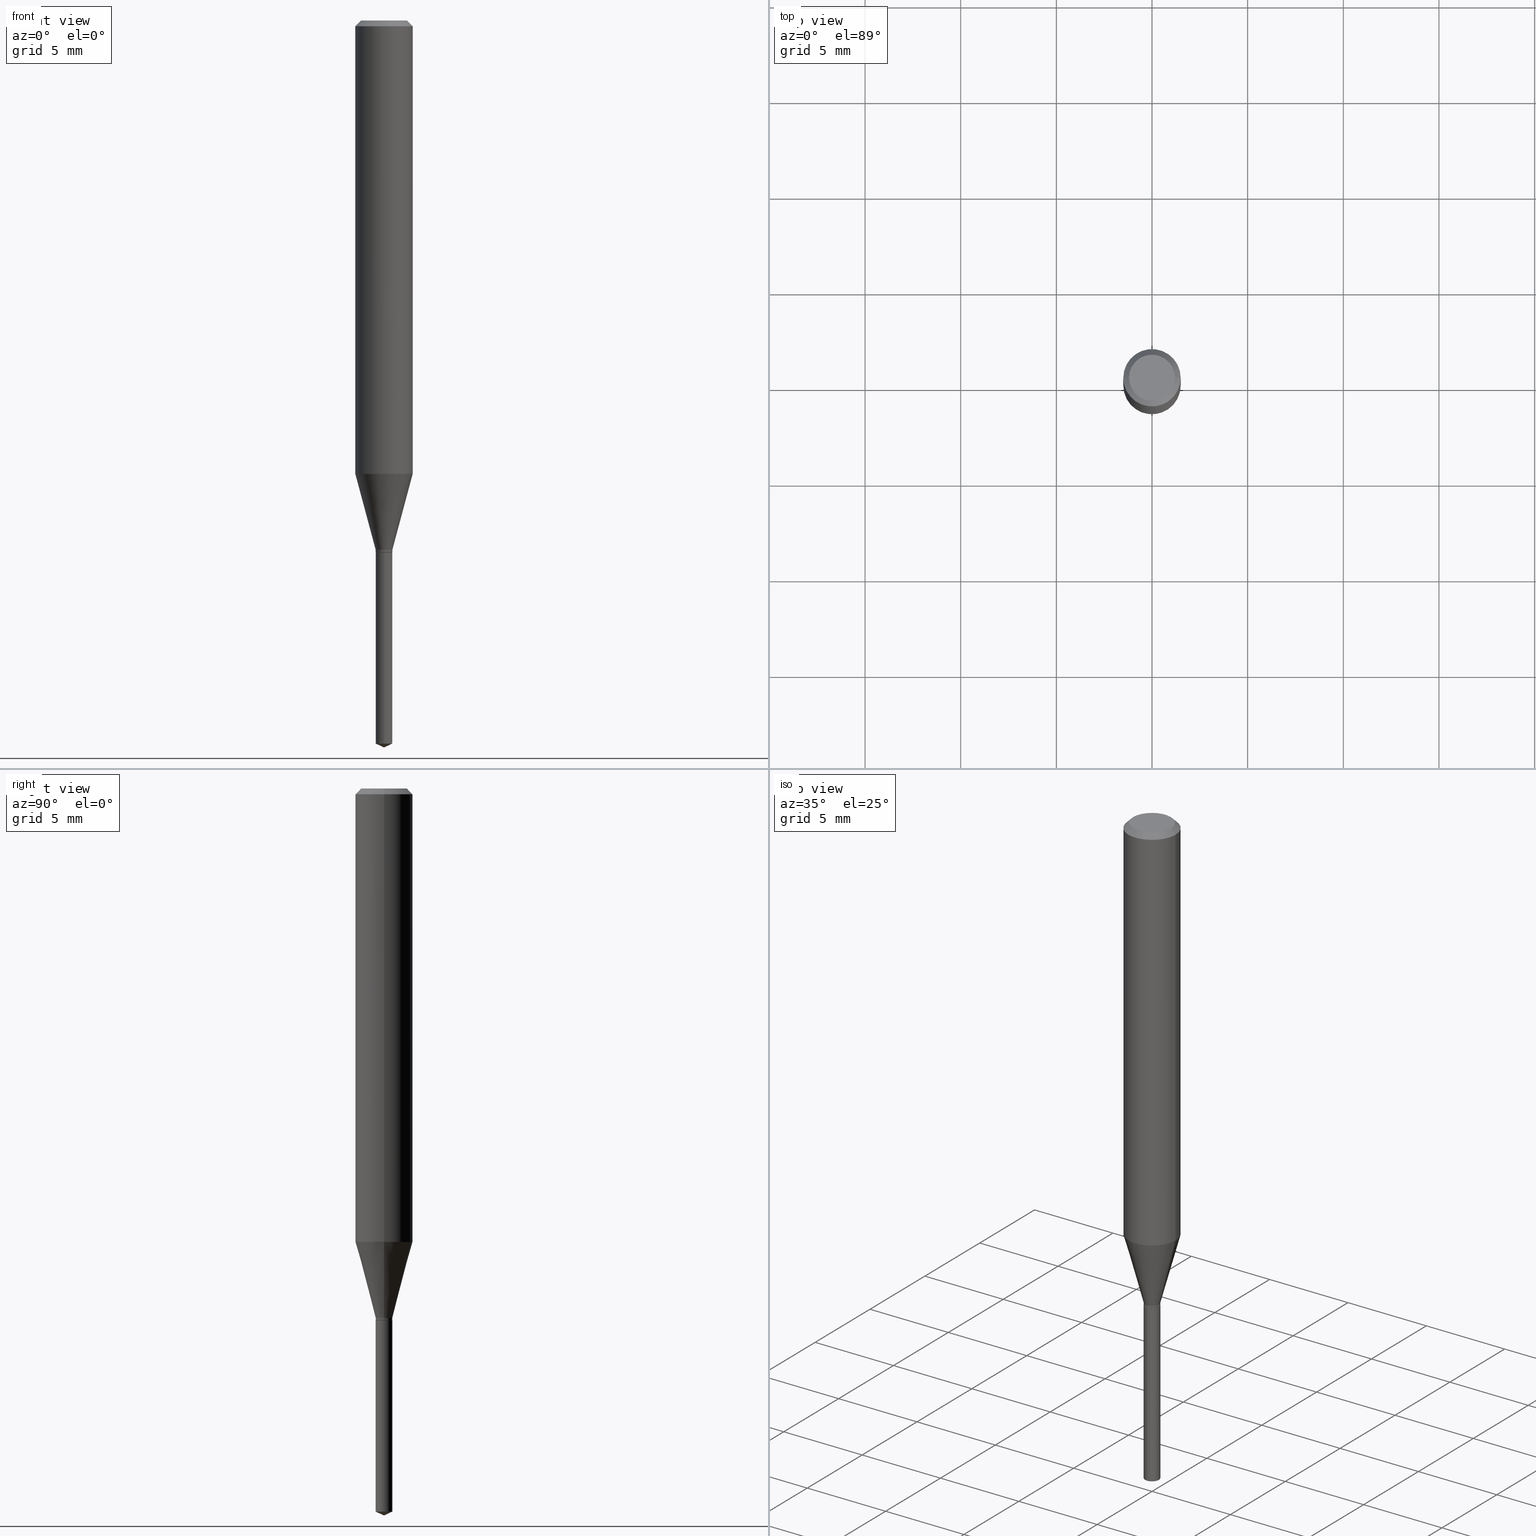
[diagram: canonical four-view strip — front | top / right | iso, engineering-drawing reading convention]
A machine part, canonical four-view strip (front | top / right | iso — engineering-drawing reading convention). The complete STEP part file that produces these views, byte-faithful:
ISO-10303-21;
HEADER;
FILE_DESCRIPTION (( 'STEP AP203' ),
    '1' );
FILE_NAME ('08314.STEP',
    '2024-04-24T14:16:23',
    ( '' ),
    ( '' ),
    'SwSTEP 2.0',
    'SolidWorks 2023',
    '' );
FILE_SCHEMA (( 'CONFIG_CONTROL_DESIGN' ));
ENDSEC;

DATA;
#1 = CARTESIAN_POINT ( 'NONE',  ( 1.218580791828935333E-16, 0.01714999999999479788, -1.488102823662641683 ) ) ;
#2 = EDGE_CURVE ( 'NONE', #327, #79, #90, .T. ) ;
#3 = CIRCLE ( 'NONE', #288, 0.01715000000000000205 ) ;
#4 = EDGE_CURVE ( 'NONE', #441, #273, #62, .T. ) ;
#5 = DIRECTION ( 'NONE',  ( 1.000000000000000000, -6.982962677686278543E-15, 0.000000000000000000 ) ) ;
#6 = ORIENTED_EDGE ( 'NONE', *, *, #101, .F. ) ;
#7 = DIRECTION ( 'NONE',  ( 1.000000000000000000, -6.982962677686278543E-15, 0.000000000000000000 ) ) ;
#8 = COORDINATED_UNIVERSAL_TIME_OFFSET ( 5, 0, .BEHIND. ) ;
#9 = ORIENTED_EDGE ( 'NONE', *, *, #445, .F. ) ;
#10 = CYLINDRICAL_SURFACE ( 'NONE', #396, 0.05905000000000005383 ) ;
#11 = PRODUCT_DEFINITION ( 'UNKNOWN', '', #81, #268 ) ;
#12 = DIRECTION ( 'NONE',  ( -6.328713451373360701E-15, -0.9063077870366472721, 0.4226182617407052144 ) ) ;
#13 = ORIENTED_EDGE ( 'NONE', *, *, #306, .T. ) ;
#14 = MECHANICAL_CONTEXT ( 'NONE', #391, 'mechanical' ) ;
#15 = ORIENTED_EDGE ( 'NONE', *, *, #110, .T. ) ;
#16 = PRODUCT_DEFINITION_SHAPE ( 'NONE', 'NONE',  #11 ) ;
#17 = CARTESIAN_POINT ( 'NONE',  ( -0.01715000000000000205, -3.689792098432204393E-15, -1.093999999999999861 ) ) ;
#18 = ORIENTED_EDGE ( 'NONE', *, *, #458, .T. ) ;
#19 = CARTESIAN_POINT ( 'NONE',  ( 1.218580791828839191E-16, 0.01714999999999617525, -1.094499999999999806 ) ) ;
#20 = EDGE_LOOP ( 'NONE', ( #18, #15, #384, #59 ) ) ;
#21 = FACE_OUTER_BOUND ( 'NONE', #241, .T. ) ;
#22 = CYLINDRICAL_SURFACE ( 'NONE', #237, 0.01714999999999999858 ) ;
#23 = PERSON_AND_ORGANIZATION_ROLE ( 'creator' ) ;
#24 = FACE_OUTER_BOUND ( 'NONE', #330, .T. ) ;
#25 = VECTOR ( 'NONE', #367, 39.37007874015748143 ) ;
#26 = CARTESIAN_POINT ( 'NONE',  ( -0.05905000000000010935, -2.838071122134274797E-15, -0.9330270711628638747 ) ) ;
#27 = LINE ( 'NONE', #195, #379 ) ;
#28 = EDGE_CURVE ( 'NONE', #254, #470, #449, .T. ) ;
#29 = LINE ( 'NONE', #192, #40 ) ;
#30 = CIRCLE ( 'NONE', #417, 0.01714999999999999858 ) ;
#31 = LOCAL_TIME ( 10, 16, 23.00000000000000000, #483 ) ;
#32 = DIRECTION ( 'NONE',  ( 1.000000000000000000, -6.982962677686267499E-15, 0.000000000000000000 ) ) ;
#33 = CARTESIAN_POINT ( 'NONE',  ( 0.01715000000000000205, -3.939438394616720359E-15, -1.093999999999999861 ) ) ;
#34 = ADVANCED_FACE ( 'NONE', ( #21 ), #478, .F. ) ;
#35 = SECURITY_CLASSIFICATION_LEVEL ( 'unclassified' ) ;
#36 = ADVANCED_FACE ( 'NONE', ( #141 ), #22, .T. ) ;
#37 = DIRECTION ( 'NONE',  ( -2.445460715294871217E-29, 3.491492925458510144E-15, 1.000000000000000000 ) ) ;
#38 = APPROVAL_ROLE ( '' ) ;
#39 = EDGE_LOOP ( 'NONE', ( #353, #134, #235 ) ) ;
#40 = VECTOR ( 'NONE', #298, 39.37007874015748143 ) ;
#41 = CARTESIAN_POINT ( 'NONE',  ( 2.676565608369631794E-29, -3.821426325363822773E-15, -1.094499999999999806 ) ) ;
#42 = PERSON_AND_ORGANIZATION_ROLE ( 'design_supplier' ) ;
#43 = ORIENTED_EDGE ( 'NONE', *, *, #4, .T. ) ;
#44 = EDGE_CURVE ( 'NONE', #181, #148, #359, .T. ) ;
#45 = FACE_OUTER_BOUND ( 'NONE', #468, .T. ) ;
#46 = ORIENTED_EDGE ( 'NONE', *, *, #458, .F. ) ;
#47 = PLANE ( 'NONE',  #270 ) ;
#48 = EDGE_LOOP ( 'NONE', ( #77, #421, #199, #9 ) ) ;
#49 = APPLICATION_PROTOCOL_DEFINITION ( 'international standard', 'config_control_design', 1994, #95 ) ;
#50 = MANIFOLD_SOLID_BREP ( 'Body-Move/Copy2[2]', #454 ) ;
#51 = ORIENTED_EDGE ( 'NONE', *, *, #216, .F. ) ;
#52 = CC_DESIGN_PERSON_AND_ORGANIZATION_ASSIGNMENT ( #336, #23, ( #11 ) ) ;
#53 =( LENGTH_UNIT ( ) NAMED_UNIT ( * ) SI_UNIT ( $, .METRE. ) );
#54 = CARTESIAN_POINT ( 'NONE',  ( -0.01664999999999999813, -3.703120959859765711E-15, -1.094499999999999806 ) ) ;
#55 = DIRECTION ( 'NONE',  ( -1.000000000000000000, 6.982962677686265922E-15, -4.876176775795935793E-29 ) ) ;
#56 = CARTESIAN_POINT ( 'NONE',  ( 2.675342873966538993E-29, -3.819680584694400481E-15, -1.093999999999999861 ) ) ;
#57 = VECTOR ( 'NONE', #378, 39.37007874015748143 ) ;
#58 = MANIFOLD_SOLID_BREP ( 'Body-Move/Copy2[1]', #176 ) ;
#59 = ORIENTED_EDGE ( 'NONE', *, *, #92, .F. ) ;
#60 =( NAMED_UNIT ( * ) SI_UNIT ( $, .STERADIAN. ) SOLID_ANGLE_UNIT ( ) );
#61 = CC_DESIGN_PERSON_AND_ORGANIZATION_ASSIGNMENT ( #383, #42, ( #81 ) ) ;
#62 = LINE ( 'NONE', #296, #307 ) ;
#63 = DATE_TIME_ROLE ( 'creation_date' ) ;
#64 = EDGE_LOOP ( 'NONE', ( #290, #275, #51, #363 ) ) ;
#65 = DIRECTION ( 'NONE',  ( -2.445468806185136597E-29, 3.491481338843145583E-15, 1.000000000000000000 ) ) ;
#66 = AXIS2_PLACEMENT_3D ( 'NONE', #253, #404, #438 ) ;
#67 = LOCAL_TIME ( 10, 16, 23.00000000000000000, #352 ) ;
#68 = CARTESIAN_POINT ( 'NONE',  ( 2.281688597855063400E-29, -3.257646607600614684E-15, -0.9330270711628638747 ) ) ;
#69 = ADVANCED_FACE ( 'NONE', ( #368 ), #395, .T. ) ;
#70 = DIRECTION ( 'NONE',  ( -2.445468806185136877E-29, 3.491481338843145188E-15, 1.000000000000000000 ) ) ;
#71 = FACE_OUTER_BOUND ( 'NONE', #64, .T. ) ;
#72 = CONICAL_SURFACE ( 'NONE', #278, 0.05904999999999999832, 0.7853981633974452814 ) ;
#73 = LOCAL_TIME ( 10, 16, 23.00000000000000000, #372 ) ;
#74 = CYLINDRICAL_SURFACE ( 'NONE', #218, 0.01715000000000000205 ) ;
#75 = EDGE_CURVE ( 'NONE', #281, #429, #248, .T. ) ;
#76 = DIRECTION ( 'NONE',  ( -2.445468806185136597E-29, 3.491481338843145583E-15, 1.000000000000000000 ) ) ;
#77 = ORIENTED_EDGE ( 'NONE', *, *, #110, .F. ) ;
#78 = DIRECTION ( 'NONE',  ( 1.000000000000000000, -6.982962677686278543E-15, 0.000000000000000000 ) ) ;
#79 = VERTEX_POINT ( 'NONE', #26 ) ;
#80 = VECTOR ( 'NONE', #312, 39.37007874015747433 ) ;
#81 = PRODUCT_DEFINITION_FORMATION_WITH_SPECIFIED_SOURCE ( 'ANY', '', #86, .NOT_KNOWN. ) ;
#82 = FACE_OUTER_BOUND ( 'NONE', #83, .T. ) ;
#83 = EDGE_LOOP ( 'NONE', ( #439, #179 ) ) ;
#84 = EDGE_CURVE ( 'NONE', #148, #437, #189, .T. ) ;
#85 = DIRECTION ( 'NONE',  ( -0.2588190451025213501, 5.211531920934551042E-15, 0.9659258262890682012 ) ) ;
#86 = PRODUCT ( '08314', '08314', '', ( #14 ) ) ;
#87 = EDGE_LOOP ( 'NONE', ( #251, #316 ) ) ;
#88 = CARTESIAN_POINT ( 'NONE',  ( 2.664093717458087237E-29, -3.803619770535721859E-15, -1.089399999999999924 ) ) ;
#89 = VERTEX_POINT ( 'NONE', #187 ) ;
#90 = CIRCLE ( 'NONE', #334, 0.05905000000000010935 ) ;
#91 = VECTOR ( 'NONE', #142, 39.37007874015748143 ) ;
#92 = EDGE_CURVE ( 'NONE', #273, #210, #190, .T. ) ;
#93 = PERSON_AND_ORGANIZATION ( #403, #202 ) ;
#94 = SECURITY_CLASSIFICATION ( '', '', #35 ) ;
#95 = APPLICATION_CONTEXT ( 'configuration controlled 3d designs of mechanical parts and assemblies' ) ;
#96 = DIRECTION ( 'NONE',  ( 1.000000000000000000, -6.982962677686279332E-15, 0.000000000000000000 ) ) ;
#97 = CC_DESIGN_DATE_AND_TIME_ASSIGNMENT ( #297, #63, ( #11 ) ) ;
#98 = DIRECTION ( 'NONE',  ( -2.445468806185136597E-29, 3.491481338843145583E-15, 1.000000000000000000 ) ) ;
#99 = DIRECTION ( 'NONE',  ( -2.445460715294871217E-29, 3.491492925458510144E-15, 1.000000000000000000 ) ) ;
#100 = ORIENTED_EDGE ( 'NONE', *, *, #398, .T. ) ;
#101 = EDGE_CURVE ( 'NONE', #79, #327, #277, .T. ) ;
#102 = CARTESIAN_POINT ( 'NONE',  ( 2.664093717458087237E-29, -3.803619770535721859E-15, -1.089399999999999924 ) ) ;
#103 = CIRCLE ( 'NONE', #455, 0.01714999999999999858 ) ;
#104 = APPROVAL_PERSON_ORGANIZATION ( #106, #242, #408 ) ;
#105 = DIRECTION ( 'NONE',  ( -2.445468806185136597E-29, 3.491481338843145583E-15, 1.000000000000000000 ) ) ;
#106 = PERSON_AND_ORGANIZATION ( #403, #202 ) ;
#107 = CARTESIAN_POINT ( 'NONE',  ( 2.676565608369631794E-29, -3.821426325363822773E-15, -1.094499999999999806 ) ) ;
#108 = FACE_OUTER_BOUND ( 'NONE', #369, .T. ) ;
#109 = PRODUCT_RELATED_PRODUCT_CATEGORY ( 'detail', '', ( #86 ) ) ;
#110 = EDGE_CURVE ( 'NONE', #429, #284, #263, .T. ) ;
#111 = CARTESIAN_POINT ( 'NONE',  ( 2.676565608369631794E-29, -3.821426325363822773E-15, -1.094499999999999806 ) ) ;
#112 = CIRCLE ( 'NONE', #348, 0.05904999999999999832 ) ;
#113 = CC_DESIGN_SECURITY_CLASSIFICATION ( #94, ( #81 ) ) ;
#114 = DIRECTION ( 'NONE',  ( -0.7071067811865453523, 2.468850131082234184E-15, -0.7071067811865496822 ) ) ;
#115 = DIRECTION ( 'NONE',  ( -2.445460715294871217E-29, 3.491492925458510144E-15, 1.000000000000000000 ) ) ;
#116 = CC_DESIGN_PERSON_AND_ORGANIZATION_ASSIGNMENT ( #315, #272, ( #94 ) ) ;
#117 = CARTESIAN_POINT ( 'NONE',  ( 0.05904999999999999832, -4.535783407291118600E-16, -0.01181000000000006871 ) ) ;
#118 = AXIS2_PLACEMENT_3D ( 'NONE', #333, #324, #472 ) ;
#119 = CIRCLE ( 'NONE', #177, 0.05904999999999999832 ) ;
#120 = LOCAL_TIME ( 10, 16, 23.00000000000000000, #8 ) ;
#121 = CARTESIAN_POINT ( 'NONE',  ( 2.676565608369631794E-29, -3.821426325363822773E-15, -1.094499999999999806 ) ) ;
#122 = ORIENTED_EDGE ( 'NONE', *, *, #101, .T. ) ;
#123 = CARTESIAN_POINT ( 'NONE',  ( -0.01714999999999999858, -3.681761691352864687E-15, -1.089399999999999924 ) ) ;
#124 = PERSON_AND_ORGANIZATION ( #403, #202 ) ;
#125 = ORIENTED_EDGE ( 'NONE', *, *, #2, .F. ) ;
#126 = DIRECTION ( 'NONE',  ( -2.445468806185136597E-29, 3.491481338843145583E-15, 1.000000000000000000 ) ) ;
#127 = ADVANCED_FACE ( 'NONE', ( #24 ), #346, .T. ) ;
#128 = APPROVAL_DATE_TIME ( #167, #172 ) ;
#129 = EDGE_LOOP ( 'NONE', ( #397, #407, #100, #6 ) ) ;
#130 = AXIS2_PLACEMENT_3D ( 'NONE', #41, #280, #7 ) ;
#131 = AXIS2_PLACEMENT_3D ( 'NONE', #305, #267, #415 ) ;
#132 = APPROVAL_PERSON_ORGANIZATION ( #93, #456, #137 ) ;
#133 = CARTESIAN_POINT ( 'NONE',  ( 2.676565608369631794E-29, -3.821426325363822773E-15, -1.094499999999999806 ) ) ;
#134 = ORIENTED_EDGE ( 'NONE', *, *, #188, .T. ) ;
#135 = DIRECTION ( 'NONE',  ( 1.000000000000000000, -6.982962677686266711E-15, 4.876185090822587894E-29 ) ) ;
#136 = EDGE_CURVE ( 'NONE', #470, #244, #27, .T. ) ;
#137 = APPROVAL_ROLE ( '' ) ;
#138 = CARTESIAN_POINT ( 'NONE',  ( 2.664093717458087237E-29, -3.803619770535721859E-15, -1.089399999999999924 ) ) ;
#139 = AXIS2_PLACEMENT_3D ( 'NONE', #111, #228, #484 ) ;
#140 =( CONVERSION_BASED_UNIT ( 'INCH', #250 ) LENGTH_UNIT ( ) NAMED_UNIT ( #259 ) );
#141 = FACE_OUTER_BOUND ( 'NONE', #257, .T. ) ;
#142 = DIRECTION ( 'NONE',  ( 0.7071067811865453523, -7.319954787623248157E-15, -0.7071067811865496822 ) ) ;
#143 = ORIENTED_EDGE ( 'NONE', *, *, #286, .T. ) ;
#144 = ADVANCED_FACE ( 'NONE', ( #71 ), #153, .T. ) ;
#145 = CARTESIAN_POINT ( 'NONE',  ( 4.132873053354867254E-48, -5.900647395337818946E-34, -1.690012582823346072E-19 ) ) ;
#146 = DIRECTION ( 'NONE',  ( 0.000000000000000000, 0.000000000000000000, 1.000000000000000000 ) ) ;
#147 = AXIS2_PLACEMENT_3D ( 'NONE', #282, #308, #78 ) ;
#148 = VERTEX_POINT ( 'NONE', #414 ) ;
#149 = ADVANCED_FACE ( 'NONE', ( #411 ), #340, .T. ) ;
#150 = CALENDAR_DATE ( 2024, 24, 4 ) ;
#151 = CARTESIAN_POINT ( 'NONE',  ( 2.664093717458087237E-29, -3.803619770535721859E-15, -1.089399999999999924 ) ) ;
#152 = CARTESIAN_POINT ( 'NONE',  ( -0.05905000000000005383, 4.195754854663395423E-16, -2.904631170795524694E-30 ) ) ;
#153 = CYLINDRICAL_SURFACE ( 'NONE', #139, 0.01714999999999999858 ) ;
#154 = DIRECTION ( 'NONE',  ( -2.445468806185136597E-29, 3.491481338843145583E-15, 1.000000000000000000 ) ) ;
#155 = EDGE_CURVE ( 'NONE', #79, #437, #450, .T. ) ;
#156 = DIRECTION ( 'NONE',  ( -2.445468806185136597E-29, 3.491481338843145583E-15, 1.000000000000000000 ) ) ;
#157 = CARTESIAN_POINT ( 'NONE',  ( 2.888098660104663328E-31, -4.123439461173779030E-17, -0.01181000000000006871 ) ) ;
#158 = VECTOR ( 'NONE', #85, 39.37007874015747433 ) ;
#159 = CC_DESIGN_APPROVAL ( #456, ( #11 ) ) ;
#160 = EDGE_CURVE ( 'NONE', #210, #284, #246, .T. ) ;
#161 = CARTESIAN_POINT ( 'NONE',  ( 0.01714999999999999858, -3.923377580458041737E-15, -1.089399999999999924 ) ) ;
#162 = ORIENTED_EDGE ( 'NONE', *, *, #84, .F. ) ;
#163 = CARTESIAN_POINT ( 'NONE',  ( 0.05905000000000010935, -3.669990553717989210E-15, -0.9330270711628638747 ) ) ;
#164 = APPROVAL_STATUS ( 'not_yet_approved' ) ;
#165 = VERTEX_POINT ( 'NONE', #117 ) ;
#166 = FACE_OUTER_BOUND ( 'NONE', #444, .T. ) ;
#167 = DATE_AND_TIME ( #313, #67 ) ;
#168 = EDGE_LOOP ( 'NONE', ( #386, #207, #125, #461 ) ) ;
#169 = AXIS2_PLACEMENT_3D ( 'NONE', #299, #343, #448 ) ;
#170 = DIRECTION ( 'NONE',  ( 6.982962677686265922E-15, 1.000000000000000000, -3.491492925458510144E-15 ) ) ;
#171 = EDGE_LOOP ( 'NONE', ( #389, #245, #43, #215 ) ) ;
#172 = APPROVAL ( #164, 'UNSPECIFIED' ) ;
#173 = APPROVAL_STATUS ( 'not_yet_approved' ) ;
#174 = CARTESIAN_POINT ( 'NONE',  ( 3.639105851065756333E-29, -5.195687799622430095E-15, -1.488102823662641683 ) ) ;
#175 = ORIENTED_EDGE ( 'NONE', *, *, #2, .T. ) ;
#176 = CLOSED_SHELL ( 'NONE', ( #144, #350, #149, #36, #289 ) ) ;
#177 = AXIS2_PLACEMENT_3D ( 'NONE', #157, #317, #276 ) ;
#178 = LINE ( 'NONE', #440, #91 ) ;
#179 = ORIENTED_EDGE ( 'NONE', *, *, #252, .T. ) ;
#180 = ADVANCED_FACE ( 'NONE', ( #108 ), #418, .T. ) ;
#181 = VERTEX_POINT ( 'NONE', #489 ) ;
#182 = FACE_OUTER_BOUND ( 'NONE', #87, .T. ) ;
#183 = DIRECTION ( 'NONE',  ( -6.982962677686266711E-15, -1.000000000000000000, 0.000000000000000000 ) ) ;
#184 = AXIS2_PLACEMENT_3D ( 'NONE', #227, #377, #485 ) ;
#185 = DATE_AND_TIME ( #222, #73 ) ;
#186 = CIRCLE ( 'NONE', #200, 0.01715000000000000205 ) ;
#187 = CARTESIAN_POINT ( 'NONE',  ( 1.218580791828936073E-16, 0.01714999999999617525, -1.094499999999999806 ) ) ;
#188 = EDGE_CURVE ( 'NONE', #366, #254, #29, .T. ) ;
#189 = LINE ( 'NONE', #265, #416 ) ;
#190 = LINE ( 'NONE', #380, #57 ) ;
#191 = VECTOR ( 'NONE', #213, 39.37007874015748854 ) ;
#192 = CARTESIAN_POINT ( 'NONE',  ( 3.658671642415649744E-29, -5.223597202677443246E-15, -1.496099999999999985 ) ) ;
#193 = AXIS2_PLACEMENT_3D ( 'NONE', #236, #37, #381 ) ;
#194 = CC_DESIGN_APPROVAL ( #172, ( #94 ) ) ;
#195 = CARTESIAN_POINT ( 'NONE',  ( -1.197578099222926869E-16, -0.01715000000000382191, -1.094499999999999806 ) ) ;
#196 = CARTESIAN_POINT ( 'NONE',  ( -9.261931828548885815E-28, 1.322367415117763772E-13, 37.87397874015748300 ) ) ;
#197 = CC_DESIGN_PERSON_AND_ORGANIZATION_ASSIGNMENT ( #124, #460, ( #81 ) ) ;
#198 = DIRECTION ( 'NONE',  ( -1.000000000000000000, 6.982962677686266711E-15, 0.000000000000000000 ) ) ;
#199 = ORIENTED_EDGE ( 'NONE', *, *, #92, .T. ) ;
#200 = AXIS2_PLACEMENT_3D ( 'NONE', #56, #471, #331 ) ;
#201 = ADVANCED_FACE ( 'NONE', ( #342 ), #442, .T. ) ;
#202 = ORGANIZATION ( 'UNSPECIFIED', 'UNSPECIFIED', '' ) ;
#203 = CARTESIAN_POINT ( 'NONE',  ( 2.888098660104663328E-31, -4.123439461173779030E-17, -0.01181000000000006871 ) ) ;
#204 = ORIENTED_EDGE ( 'NONE', *, *, #44, .F. ) ;
#205 = CARTESIAN_POINT ( 'NONE',  ( -0.01714999999999999858, -3.689792098432204393E-15, -1.089399999999999924 ) ) ;
#206 = DATE_TIME_ROLE ( 'classification_date' ) ;
#207 = ORIENTED_EDGE ( 'NONE', *, *, #264, .T. ) ;
#208 = UNCERTAINTY_MEASURE_WITH_UNIT (LENGTH_MEASURE( 1.000000000000000082E-05 ), #140, 'distance_accuracy_value', 'NONE');
#209 = LINE ( 'NONE', #426, #301 ) ;
#210 = VERTEX_POINT ( 'NONE', #452 ) ;
#211 = PERSON_AND_ORGANIZATION_ROLE ( 'design_owner' ) ;
#212 = ORIENTED_EDGE ( 'NONE', *, *, #4, .F. ) ;
#213 = DIRECTION ( 'NONE',  ( -0.7071067811865232589, 7.493145998870265808E-15, 0.7071067811865715536 ) ) ;
#214 = CARTESIAN_POINT ( 'NONE',  ( -0.05904999999999999832, -1.229865015639836319E-15, -0.01181000000000006871 ) ) ;
#215 = ORIENTED_EDGE ( 'NONE', *, *, #410, .F. ) ;
#216 = EDGE_CURVE ( 'NONE', #244, #89, #239, .T. ) ;
#217 = VECTOR ( 'NONE', #338, 39.37007874015748143 ) ;
#218 = AXIS2_PLACEMENT_3D ( 'NONE', #261, #65, #390 ) ;
#219 = DIRECTION ( 'NONE',  ( -6.982962677686266711E-15, -1.000000000000000000, 0.000000000000000000 ) ) ;
#220 = APPLICATION_PROTOCOL_DEFINITION ( 'international standard', 'config_control_design', 1994, #391 ) ;
#221 = DIRECTION ( 'NONE',  ( 0.7071067811865232589, -2.468850131082003836E-15, 0.7071067811865715536 ) ) ;
#222 = CALENDAR_DATE ( 2024, 24, 4 ) ;
#223 = ADVANCED_FACE ( 'NONE', ( #230 ), #447, .T. ) ;
#224 = ORIENTED_EDGE ( 'NONE', *, *, #155, .F. ) ;
#225 = ADVANCED_FACE ( 'NONE', ( #269 ), #74, .T. ) ;
#226 = CIRCLE ( 'NONE', #130, 0.01664999999999999813 ) ;
#227 = CARTESIAN_POINT ( 'NONE',  ( 2.888098660104663328E-31, -4.123439461173779030E-17, -0.01181000000000006871 ) ) ;
#228 = DIRECTION ( 'NONE',  ( -2.445460715294871217E-29, 3.491492925458510144E-15, 1.000000000000000000 ) ) ;
#229 = DIRECTION ( 'NONE',  ( 1.000000000000000000, -6.982962677686279332E-15, 0.000000000000000000 ) ) ;
#230 = FACE_OUTER_BOUND ( 'NONE', #48, .T. ) ;
#231 = AXIS2_PLACEMENT_3D ( 'NONE', #490, #156, #453 ) ;
#232 = CARTESIAN_POINT ( 'NONE',  ( 2.676565608369631794E-29, -3.821426325363822773E-15, -1.094499999999999806 ) ) ;
#233 = PERSON_AND_ORGANIZATION ( #403, #202 ) ;
#234 = DIRECTION ( 'NONE',  ( 1.000000000000000000, -6.982962677686266711E-15, 4.876176775795935793E-29 ) ) ;
#235 = ORIENTED_EDGE ( 'NONE', *, *, #365, .F. ) ;
#236 = CARTESIAN_POINT ( 'NONE',  ( 2.676565608369631794E-29, -3.821426325363822773E-15, -1.094499999999999806 ) ) ;
#237 = AXIS2_PLACEMENT_3D ( 'NONE', #107, #99, #183 ) ;
#238 = ORIENTED_EDGE ( 'NONE', *, *, #354, .T. ) ;
#239 = CIRCLE ( 'NONE', #131, 0.01714999999999999858 ) ;
#240 = DIRECTION ( 'NONE',  ( 1.000000000000000000, -6.982962677686279332E-15, 0.000000000000000000 ) ) ;
#241 = EDGE_LOOP ( 'NONE', ( #475, #480 ) ) ;
#242 = APPROVAL ( #258, 'UNSPECIFIED' ) ;
#243 = DIRECTION ( 'NONE',  ( 2.445460715294871217E-29, -3.491492925458510144E-15, -1.000000000000000000 ) ) ;
#244 = VERTEX_POINT ( 'NONE', #422 ) ;
#245 = ORIENTED_EDGE ( 'NONE', *, *, #325, .T. ) ;
#246 = CIRCLE ( 'NONE', #433, 0.01714999999999999858 ) ;
#247 = DATE_AND_TIME ( #285, #467 ) ;
#248 = LINE ( 'NONE', #54, #191 ) ;
#249 = ADVANCED_FACE ( 'NONE', ( #351 ), #487, .T. ) ;
#250 = LENGTH_MEASURE_WITH_UNIT ( LENGTH_MEASURE( 0.02539999999999999897 ), #53 );
#251 = ORIENTED_EDGE ( 'NONE', *, *, #306, .F. ) ;
#252 = EDGE_CURVE ( 'NONE', #89, #244, #474, .T. ) ;
#253 = CARTESIAN_POINT ( 'NONE',  ( 2.676565608369631794E-29, -3.821426325363822773E-15, -1.094499999999999806 ) ) ;
#254 = VERTEX_POINT ( 'NONE', #1 ) ;
#255 = AXIS2_PLACEMENT_3D ( 'NONE', #232, #413, #304 ) ;
#256 = LINE ( 'NONE', #19, #319 ) ;
#257 = EDGE_LOOP ( 'NONE', ( #427, #392, #400, #349 ) ) ;
#258 = APPROVAL_STATUS ( 'not_yet_approved' ) ;
#259 = DIMENSIONAL_EXPONENTS ( 1.000000000000000000, 0.000000000000000000, 0.000000000000000000, 0.000000000000000000, 0.000000000000000000, 0.000000000000000000, 0.000000000000000000 ) ;
#260 = DIRECTION ( 'NONE',  ( 1.000000000000000000, -6.982962677686267499E-15, 0.000000000000000000 ) ) ;
#261 = CARTESIAN_POINT ( 'NONE',  ( 0.000000000000000000, 0.000000000000000000, 0.000000000000000000 ) ) ;
#262 = AXIS2_PLACEMENT_3D ( 'NONE', #486, #115, #303 ) ;
#263 = LINE ( 'NONE', #337, #217 ) ;
#264 = EDGE_CURVE ( 'NONE', #284, #79, #469, .T. ) ;
#265 = CARTESIAN_POINT ( 'NONE',  ( -0.05904999999999999832, 3.711095515056362547E-16, -0.01181000000000006871 ) ) ;
#266 = ADVANCED_BREP_SHAPE_REPRESENTATION ( '08314', ( #58, #50, #341 ), #310 ) ;
#267 = DIRECTION ( 'NONE',  ( -2.445460715294871217E-29, 3.491492925458510144E-15, 1.000000000000000000 ) ) ;
#268 = DESIGN_CONTEXT ( 'detailed design', #95, 'design' ) ;
#269 = FACE_OUTER_BOUND ( 'NONE', #20, .T. ) ;
#270 = AXIS2_PLACEMENT_3D ( 'NONE', #121, #243, #170 ) ;
#271 = FACE_OUTER_BOUND ( 'NONE', #320, .T. ) ;
#272 = PERSON_AND_ORGANIZATION_ROLE ( 'classification_officer' ) ;
#273 = VERTEX_POINT ( 'NONE', #33 ) ;
#274 = CARTESIAN_POINT ( 'NONE',  ( -0.01664999999999999813, -3.700471732685654510E-15, -1.094499999999999806 ) ) ;
#275 = ORIENTED_EDGE ( 'NONE', *, *, #423, .T. ) ;
#276 = DIRECTION ( 'NONE',  ( 1.000000000000000000, -6.982962677686266711E-15, 0.000000000000000000 ) ) ;
#277 = CIRCLE ( 'NONE', #425, 0.05905000000000010935 ) ;
#278 = AXIS2_PLACEMENT_3D ( 'NONE', #314, #430, #198 ) ;
#279 = CC_DESIGN_APPROVAL ( #242, ( #81 ) ) ;
#280 = DIRECTION ( 'NONE',  ( -2.445468806185136597E-29, 3.491481338843145583E-15, 1.000000000000000000 ) ) ;
#281 = VERTEX_POINT ( 'NONE', #274 ) ;
#282 = CARTESIAN_POINT ( 'NONE',  ( 2.676565608369631794E-29, -3.821426325363822773E-15, -1.094499999999999806 ) ) ;
#283 = APPROVAL_DATE_TIME ( #185, #242 ) ;
#284 = VERTEX_POINT ( 'NONE', #205 ) ;
#285 = CALENDAR_DATE ( 2024, 24, 4 ) ;
#286 = EDGE_CURVE ( 'NONE', #165, #437, #112, .T. ) ;
#287 = DIRECTION ( 'NONE',  ( -2.445468806185136597E-29, 3.491481338843145583E-15, 1.000000000000000000 ) ) ;
#288 = AXIS2_PLACEMENT_3D ( 'NONE', #473, #329, #323 ) ;
#289 = ADVANCED_FACE ( 'NONE', ( #82 ), #47, .F. ) ;
#290 = ORIENTED_EDGE ( 'NONE', *, *, #365, .T. ) ;
#291 = PLANE ( 'NONE',  #66 ) ;
#292 = ORIENTED_EDGE ( 'NONE', *, *, #28, .F. ) ;
#293 = ORIENTED_EDGE ( 'NONE', *, *, #155, .T. ) ;
#294 = CONICAL_SURFACE ( 'NONE', #360, 84.42940631927334039, 1.134464013796311344 ) ;
#295 = DIRECTION ( 'NONE',  ( 1.000000000000000000, 0.000000000000000000, 0.000000000000000000 ) ) ;
#296 = CARTESIAN_POINT ( 'NONE',  ( 0.01664999999999999813, -3.937692653947298855E-15, -1.094499999999999806 ) ) ;
#297 = DATE_AND_TIME ( #150, #31 ) ;
#298 = DIRECTION ( 'NONE',  ( 6.439704144417016154E-15, 0.9063077870366501587, 0.4226182617406989417 ) ) ;
#299 = CARTESIAN_POINT ( 'NONE',  ( 0.000000000000000000, 0.000000000000000000, 0.000000000000000000 ) ) ;
#300 = AXIS2_PLACEMENT_3D ( 'NONE', #138, #287, #96 ) ;
#301 = VECTOR ( 'NONE', #12, 39.37007874015748143 ) ;
#302 = EDGE_CURVE ( 'NONE', #148, #181, #375, .T. ) ;
#303 = DIRECTION ( 'NONE',  ( -6.982962677686266711E-15, -1.000000000000000000, 3.520397390770495680E-15 ) ) ;
#304 = DIRECTION ( 'NONE',  ( 1.000000000000000000, -6.982962677686278543E-15, 0.000000000000000000 ) ) ;
#305 = CARTESIAN_POINT ( 'NONE',  ( 2.676565608369631794E-29, -3.821426325363822773E-15, -1.094499999999999806 ) ) ;
#306 = EDGE_CURVE ( 'NONE', #441, #281, #309, .T. ) ;
#307 = VECTOR ( 'NONE', #221, 39.37007874015748854 ) ;
#308 = DIRECTION ( 'NONE',  ( -2.445468806185136597E-29, 3.491481338843145583E-15, 1.000000000000000000 ) ) ;
#309 = CIRCLE ( 'NONE', #147, 0.01664999999999999813 ) ;
#310 =( GEOMETRIC_REPRESENTATION_CONTEXT ( 3 ) GLOBAL_UNCERTAINTY_ASSIGNED_CONTEXT ( ( #208 ) ) GLOBAL_UNIT_ASSIGNED_CONTEXT ( ( #140, #370, #60 ) ) REPRESENTATION_CONTEXT ( 'NONE', 'WORKASPACE' ) );
#311 = ORIENTED_EDGE ( 'NONE', *, *, #84, .T. ) ;
#312 = DIRECTION ( 'NONE',  ( 0.2588190451025213501, 1.565188264969621968E-15, 0.9659258262890682012 ) ) ;
#313 = CALENDAR_DATE ( 2024, 24, 4 ) ;
#314 = CARTESIAN_POINT ( 'NONE',  ( 2.888098660104663328E-31, -4.123439461173779030E-17, -0.01181000000000006871 ) ) ;
#315 = PERSON_AND_ORGANIZATION ( #403, #202 ) ;
#316 = ORIENTED_EDGE ( 'NONE', *, *, #325, .F. ) ;
#317 = DIRECTION ( 'NONE',  ( -2.445468806185136597E-29, 3.491481338843145583E-15, 1.000000000000000000 ) ) ;
#318 = AXIS2_PLACEMENT_3D ( 'NONE', #145, #371, #55 ) ;
#319 = VECTOR ( 'NONE', #399, 39.37007874015748143 ) ;
#320 = EDGE_LOOP ( 'NONE', ( #204, #464, #143, #162 ) ) ;
#321 = CARTESIAN_POINT ( 'NONE',  ( 8.265746106709734507E-48, -1.180129479067563789E-33, -3.380025165646692144E-19 ) ) ;
#322 = ORIENTED_EDGE ( 'NONE', *, *, #188, .F. ) ;
#323 = DIRECTION ( 'NONE',  ( 1.000000000000000000, -6.982962677686277755E-15, 0.000000000000000000 ) ) ;
#324 = DIRECTION ( 'NONE',  ( -2.445468806185136597E-29, 3.491481338843145583E-15, 1.000000000000000000 ) ) ;
#325 = EDGE_CURVE ( 'NONE', #281, #441, #226, .T. ) ;
#326 = APPROVAL_DATE_TIME ( #247, #456 ) ;
#327 = VERTEX_POINT ( 'NONE', #163 ) ;
#328 = AXIS2_PLACEMENT_3D ( 'NONE', #321, #126, #135 ) ;
#329 = DIRECTION ( 'NONE',  ( -2.445468806185136597E-29, 3.491481338843145583E-15, 1.000000000000000000 ) ) ;
#330 = EDGE_LOOP ( 'NONE', ( #434, #431, #311, #238 ) ) ;
#331 = DIRECTION ( 'NONE',  ( 1.000000000000000000, -6.982962677686277755E-15, 0.000000000000000000 ) ) ;
#332 = ORIENTED_EDGE ( 'NONE', *, *, #364, .T. ) ;
#333 = CARTESIAN_POINT ( 'NONE',  ( 8.265746106709734507E-48, -1.180129479067563789E-33, -3.380025165646692144E-19 ) ) ;
#334 = AXIS2_PLACEMENT_3D ( 'NONE', #405, #105, #260 ) ;
#335 = AXIS2_PLACEMENT_3D ( 'NONE', #88, #459, #240 ) ;
#336 = PERSON_AND_ORGANIZATION ( #403, #202 ) ;
#337 = CARTESIAN_POINT ( 'NONE',  ( -0.01715000000000000205, 1.218580791828571964E-16, -8.435973679787163407E-31 ) ) ;
#338 = DIRECTION ( 'NONE',  ( -2.445468806185136877E-29, 3.491481338843145188E-15, 1.000000000000000000 ) ) ;
#339 = DIRECTION ( 'NONE',  ( -2.445460715294871217E-29, 3.491492925458510144E-15, 1.000000000000000000 ) ) ;
#340 = CONICAL_SURFACE ( 'NONE', #262, 84.42940631927334039, 1.134464013796311344 ) ;
#341 = AXIS2_PLACEMENT_3D ( 'NONE', #479, #146, #295 ) ;
#342 = FACE_OUTER_BOUND ( 'NONE', #171, .T. ) ;
#343 = DIRECTION ( 'NONE',  ( -2.445468806185136597E-29, 3.491481338843145583E-15, 1.000000000000000000 ) ) ;
#344 = ADVANCED_FACE ( 'NONE', ( #271 ), #72, .T. ) ;
#345 = DIRECTION ( 'NONE',  ( -2.445460715294871217E-29, 3.491492925458510144E-15, 1.000000000000000000 ) ) ;
#346 = CONICAL_SURFACE ( 'NONE', #184, 0.05904999999999999832, 0.7853981633974452814 ) ;
#347 = FACE_OUTER_BOUND ( 'NONE', #39, .T. ) ;
#348 = AXIS2_PLACEMENT_3D ( 'NONE', #203, #355, #385 ) ;
#349 = ORIENTED_EDGE ( 'NONE', *, *, #252, .F. ) ;
#350 = ADVANCED_FACE ( 'NONE', ( #347 ), #294, .T. ) ;
#351 = FACE_OUTER_BOUND ( 'NONE', #129, .T. ) ;
#352 = COORDINATED_UNIVERSAL_TIME_OFFSET ( 5, 0, .BEHIND. ) ;
#353 = ORIENTED_EDGE ( 'NONE', *, *, #364, .F. ) ;
#354 = EDGE_CURVE ( 'NONE', #437, #165, #119, .T. ) ;
#355 = DIRECTION ( 'NONE',  ( -2.445468806185136597E-29, 3.491481338843145583E-15, 1.000000000000000000 ) ) ;
#356 = SHAPE_DEFINITION_REPRESENTATION ( #16, #266 ) ;
#357 = ORIENTED_EDGE ( 'NONE', *, *, #286, .F. ) ;
#358 = CARTESIAN_POINT ( 'NONE',  ( 3.639105851065756333E-29, -5.195687799622430095E-15, -1.488102823662641683 ) ) ;
#359 = CIRCLE ( 'NONE', #118, 0.04724000000000000421 ) ;
#360 = AXIS2_PLACEMENT_3D ( 'NONE', #196, #345, #462 ) ;
#361 = ORIENTED_EDGE ( 'NONE', *, *, #354, .F. ) ;
#362 = CARTESIAN_POINT ( 'NONE',  ( 0.01664999999999999813, -3.937692653947298855E-15, -1.094499999999999806 ) ) ;
#363 = ORIENTED_EDGE ( 'NONE', *, *, #136, .F. ) ;
#364 = EDGE_CURVE ( 'NONE', #366, #470, #209, .T. ) ;
#365 = EDGE_CURVE ( 'NONE', #470, #254, #30, .T. ) ;
#366 = VERTEX_POINT ( 'NONE', #419 ) ;
#367 = DIRECTION ( 'NONE',  ( -2.445468806185136877E-29, 3.491481338843145188E-15, 1.000000000000000000 ) ) ;
#368 = FACE_OUTER_BOUND ( 'NONE', #168, .T. ) ;
#369 = EDGE_LOOP ( 'NONE', ( #175, #293, #357, #424 ) ) ;
#370 =( NAMED_UNIT ( * ) PLANE_ANGLE_UNIT ( ) SI_UNIT ( $, .RADIAN. ) );
#371 = DIRECTION ( 'NONE',  ( 2.438088387897960049E-29, -3.491481338843145188E-15, -1.000000000000000000 ) ) ;
#372 = COORDINATED_UNIVERSAL_TIME_OFFSET ( 5, 0, .BEHIND. ) ;
#373 = ORIENTED_EDGE ( 'NONE', *, *, #75, .T. ) ;
#374 = CC_DESIGN_DATE_AND_TIME_ASSIGNMENT ( #420, #206, ( #94 ) ) ;
#375 = CIRCLE ( 'NONE', #328, 0.04724000000000000421 ) ;
#376 = DIRECTION ( 'NONE',  ( -2.445468806185136597E-29, 3.491481338843145583E-15, 1.000000000000000000 ) ) ;
#377 = DIRECTION ( 'NONE',  ( 2.445468806185136597E-29, -3.491481338843145583E-15, -1.000000000000000000 ) ) ;
#378 = DIRECTION ( 'NONE',  ( -2.445468806185136877E-29, 3.491481338843145188E-15, 1.000000000000000000 ) ) ;
#379 = VECTOR ( 'NONE', #339, 39.37007874015748143 ) ;
#380 = CARTESIAN_POINT ( 'NONE',  ( 0.01715000000000000205, -1.197578099223194836E-16, 8.362643170490031118E-31 ) ) ;
#381 = DIRECTION ( 'NONE',  ( -6.982962677686266711E-15, -1.000000000000000000, 0.000000000000000000 ) ) ;
#382 = DIRECTION ( 'NONE',  ( -2.445468806185136597E-29, 3.491481338843145583E-15, 1.000000000000000000 ) ) ;
#383 = PERSON_AND_ORGANIZATION ( #403, #202 ) ;
#384 = ORIENTED_EDGE ( 'NONE', *, *, #160, .F. ) ;
#385 = DIRECTION ( 'NONE',  ( 1.000000000000000000, -6.982962677686266711E-15, 0.000000000000000000 ) ) ;
#386 = ORIENTED_EDGE ( 'NONE', *, *, #160, .T. ) ;
#387 = ADVANCED_FACE ( 'NONE', ( #45 ), #10, .T. ) ;
#388 = DIRECTION ( 'NONE',  ( -2.445460715294871217E-29, 3.491492925458510144E-15, 1.000000000000000000 ) ) ;
#389 = ORIENTED_EDGE ( 'NONE', *, *, #75, .F. ) ;
#390 = DIRECTION ( 'NONE',  ( 1.000000000000000000, -6.982962677686266711E-15, 4.876176775795935793E-29 ) ) ;
#391 = APPLICATION_CONTEXT ( 'configuration controlled 3d designs of mechanical parts and assemblies' ) ;
#392 = ORIENTED_EDGE ( 'NONE', *, *, #28, .T. ) ;
#393 = ADVANCED_FACE ( 'NONE', ( #166 ), #481, .T. ) ;
#394 = PERSON_AND_ORGANIZATION ( #403, #202 ) ;
#395 = CONICAL_SURFACE ( 'NONE', #300, 0.01714999999999999858, 0.2617993877991500740 ) ;
#396 = AXIS2_PLACEMENT_3D ( 'NONE', #466, #76, #234 ) ;
#397 = ORIENTED_EDGE ( 'NONE', *, *, #264, .F. ) ;
#398 = EDGE_CURVE ( 'NONE', #210, #327, #428, .T. ) ;
#399 = DIRECTION ( 'NONE',  ( -2.445460715294871217E-29, 3.491492925458510144E-15, 1.000000000000000000 ) ) ;
#400 = ORIENTED_EDGE ( 'NONE', *, *, #136, .T. ) ;
#401 = CARTESIAN_POINT ( 'NONE',  ( 0.05905000000000005383, -4.123439461173744271E-16, 2.879382386107502672E-30 ) ) ;
#402 = DIRECTION ( 'NONE',  ( -2.445460715294871217E-29, 3.491492925458510144E-15, 1.000000000000000000 ) ) ;
#403 = PERSON ( 'UNSPECIFIED', 'UNSPECIFIED', 'UNSPECIFIED', ('UNSPECIFIED'), ('UNSPECIFIED'), ('UNSPECIFIED') ) ;
#404 = DIRECTION ( 'NONE',  ( -2.438088387897960049E-29, 3.491481338843145188E-15, 1.000000000000000000 ) ) ;
#405 = CARTESIAN_POINT ( 'NONE',  ( 2.281688597855063400E-29, -3.257646607600614684E-15, -0.9330270711628638747 ) ) ;
#406 = AXIS2_PLACEMENT_3D ( 'NONE', #174, #402, #219 ) ;
#407 = ORIENTED_EDGE ( 'NONE', *, *, #445, .T. ) ;
#408 = APPROVAL_ROLE ( '' ) ;
#409 = EDGE_LOOP ( 'NONE', ( #322, #332, #292 ) ) ;
#410 = EDGE_CURVE ( 'NONE', #429, #273, #186, .T. ) ;
#411 = FACE_OUTER_BOUND ( 'NONE', #409, .T. ) ;
#412 = VECTOR ( 'NONE', #70, 39.37007874015748143 ) ;
#413 = DIRECTION ( 'NONE',  ( -2.445468806185136597E-29, 3.491481338843145583E-15, 1.000000000000000000 ) ) ;
#414 = CARTESIAN_POINT ( 'NONE',  ( -0.04724000000000000421, 3.504923541997677355E-16, -3.380025165670481712E-19 ) ) ;
#415 = DIRECTION ( 'NONE',  ( -6.982962677686266711E-15, -1.000000000000000000, 0.000000000000000000 ) ) ;
#416 = VECTOR ( 'NONE', #114, 39.37007874015748143 ) ;
#417 = AXIS2_PLACEMENT_3D ( 'NONE', #358, #388, #457 ) ;
#418 = CYLINDRICAL_SURFACE ( 'NONE', #169, 0.05905000000000005383 ) ;
#419 = CARTESIAN_POINT ( 'NONE',  ( 3.658653776152655930E-29, -5.223622565778476142E-15, -1.496099999999999985 ) ) ;
#420 = DATE_AND_TIME ( #463, #120 ) ;
#421 = ORIENTED_EDGE ( 'NONE', *, *, #410, .T. ) ;
#422 = CARTESIAN_POINT ( 'NONE',  ( -1.197578099222926869E-16, -0.01715000000000382191, -1.094499999999999806 ) ) ;
#423 = EDGE_CURVE ( 'NONE', #254, #89, #256, .T. ) ;
#424 = ORIENTED_EDGE ( 'NONE', *, *, #446, .F. ) ;
#425 = AXIS2_PLACEMENT_3D ( 'NONE', #68, #154, #32 ) ;
#426 = CARTESIAN_POINT ( 'NONE',  ( 3.658653776152657051E-29, -5.223622565778476142E-15, -1.496099999999999985 ) ) ;
#427 = ORIENTED_EDGE ( 'NONE', *, *, #423, .F. ) ;
#428 = LINE ( 'NONE', #161, #80 ) ;
#429 = VERTEX_POINT ( 'NONE', #17 ) ;
#430 = DIRECTION ( 'NONE',  ( 2.445468806185136597E-29, -3.491481338843145583E-15, -1.000000000000000000 ) ) ;
#431 = ORIENTED_EDGE ( 'NONE', *, *, #302, .F. ) ;
#432 = LINE ( 'NONE', #401, #25 ) ;
#433 = AXIS2_PLACEMENT_3D ( 'NONE', #151, #376, #229 ) ;
#434 = ORIENTED_EDGE ( 'NONE', *, *, #482, .F. ) ;
#435 = APPROVAL_PERSON_ORGANIZATION ( #233, #172, #38 ) ;
#436 = COORDINATED_UNIVERSAL_TIME_OFFSET ( 5, 0, .BEHIND. ) ;
#437 = VERTEX_POINT ( 'NONE', #214 ) ;
#438 = DIRECTION ( 'NONE',  ( 1.000000000000000000, -6.982962677686265922E-15, 4.876176775795935793E-29 ) ) ;
#439 = ORIENTED_EDGE ( 'NONE', *, *, #216, .T. ) ;
#440 = CARTESIAN_POINT ( 'NONE',  ( 0.05904999999999999832, -4.463468013801466955E-16, -0.01181000000000006871 ) ) ;
#441 = VERTEX_POINT ( 'NONE', #362 ) ;
#442 = CONICAL_SURFACE ( 'NONE', #255, 0.01664999999999999813, 0.7853981633974141952 ) ;
#443 = DIRECTION ( 'NONE',  ( 1.000000000000000000, -6.982962677686279332E-15, 0.000000000000000000 ) ) ;
#444 = EDGE_LOOP ( 'NONE', ( #13, #373, #46, #212 ) ) ;
#445 = EDGE_CURVE ( 'NONE', #284, #210, #103, .T. ) ;
#446 = EDGE_CURVE ( 'NONE', #327, #165, #432, .T. ) ;
#447 = CYLINDRICAL_SURFACE ( 'NONE', #231, 0.01715000000000000205 ) ;
#448 = DIRECTION ( 'NONE',  ( 1.000000000000000000, -6.982962677686266711E-15, 4.876176775795935793E-29 ) ) ;
#449 = CIRCLE ( 'NONE', #406, 0.01714999999999999858 ) ;
#450 = LINE ( 'NONE', #152, #412 ) ;
#451 = CC_DESIGN_PERSON_AND_ORGANIZATION_ASSIGNMENT ( #394, #211, ( #86 ) ) ;
#452 = CARTESIAN_POINT ( 'NONE',  ( 0.01714999999999999858, -3.923377580458041737E-15, -1.089399999999999924 ) ) ;
#453 = DIRECTION ( 'NONE',  ( 1.000000000000000000, -6.982962677686266711E-15, 4.876176775795935793E-29 ) ) ;
#454 = CLOSED_SHELL ( 'NONE', ( #393, #344, #180, #69, #225, #223, #249, #387, #127, #34, #488, #201 ) ) ;
#455 = AXIS2_PLACEMENT_3D ( 'NONE', #102, #98, #443 ) ;
#456 = APPROVAL ( #173, 'UNSPECIFIED' ) ;
#457 = DIRECTION ( 'NONE',  ( -6.982962677686266711E-15, -1.000000000000000000, 0.000000000000000000 ) ) ;
#458 = EDGE_CURVE ( 'NONE', #273, #429, #3, .T. ) ;
#459 = DIRECTION ( 'NONE',  ( -2.445468806185136597E-29, 3.491481338843145583E-15, 1.000000000000000000 ) ) ;
#460 = PERSON_AND_ORGANIZATION_ROLE ( 'creator' ) ;
#461 = ORIENTED_EDGE ( 'NONE', *, *, #398, .F. ) ;
#462 = DIRECTION ( 'NONE',  ( -6.982962677686266711E-15, -1.000000000000000000, 3.520397390770495680E-15 ) ) ;
#463 = CALENDAR_DATE ( 2024, 24, 4 ) ;
#464 = ORIENTED_EDGE ( 'NONE', *, *, #482, .T. ) ;
#465 = AXIS2_PLACEMENT_3D ( 'NONE', #133, #382, #5 ) ;
#466 = CARTESIAN_POINT ( 'NONE',  ( 0.000000000000000000, 0.000000000000000000, 0.000000000000000000 ) ) ;
#467 = LOCAL_TIME ( 10, 16, 23.00000000000000000, #436 ) ;
#468 = EDGE_LOOP ( 'NONE', ( #224, #122, #477, #361 ) ) ;
#469 = LINE ( 'NONE', #123, #158 ) ;
#470 = VERTEX_POINT ( 'NONE', #476 ) ;
#471 = DIRECTION ( 'NONE',  ( -2.445468806185136597E-29, 3.491481338843145583E-15, 1.000000000000000000 ) ) ;
#472 = DIRECTION ( 'NONE',  ( 1.000000000000000000, -6.982962677686266711E-15, 4.876185090822587894E-29 ) ) ;
#473 = CARTESIAN_POINT ( 'NONE',  ( 2.675342873966538993E-29, -3.819680584694400481E-15, -1.093999999999999861 ) ) ;
#474 = CIRCLE ( 'NONE', #193, 0.01714999999999999858 ) ;
#475 = ORIENTED_EDGE ( 'NONE', *, *, #302, .T. ) ;
#476 = CARTESIAN_POINT ( 'NONE',  ( -1.197578099222830234E-16, -0.01715000000000518887, -1.488102823662641683 ) ) ;
#477 = ORIENTED_EDGE ( 'NONE', *, *, #446, .T. ) ;
#478 = PLANE ( 'NONE',  #318 ) ;
#479 = CARTESIAN_POINT ( 'NONE',  ( 0.000000000000000000, 0.000000000000000000, 0.000000000000000000 ) ) ;
#480 = ORIENTED_EDGE ( 'NONE', *, *, #44, .T. ) ;
#481 = CONICAL_SURFACE ( 'NONE', #465, 0.01664999999999999813, 0.7853981633974141952 ) ;
#482 = EDGE_CURVE ( 'NONE', #181, #165, #178, .T. ) ;
#483 = COORDINATED_UNIVERSAL_TIME_OFFSET ( 5, 0, .BEHIND. ) ;
#484 = DIRECTION ( 'NONE',  ( -6.982962677686266711E-15, -1.000000000000000000, 0.000000000000000000 ) ) ;
#485 = DIRECTION ( 'NONE',  ( -1.000000000000000000, 6.982962677686266711E-15, 0.000000000000000000 ) ) ;
#486 = CARTESIAN_POINT ( 'NONE',  ( -9.261931828548885815E-28, 1.322367415117763772E-13, 37.87397874015748300 ) ) ;
#487 = CONICAL_SURFACE ( 'NONE', #335, 0.01714999999999999858, 0.2617993877991500740 ) ;
#488 = ADVANCED_FACE ( 'NONE', ( #182 ), #291, .F. ) ;
#489 = CARTESIAN_POINT ( 'NONE',  ( 0.04724000000000000421, -3.852183633974369345E-16, -3.380025165621689721E-19 ) ) ;
#490 = CARTESIAN_POINT ( 'NONE',  ( 0.000000000000000000, 0.000000000000000000, 0.000000000000000000 ) ) ;
ENDSEC;
END-ISO-10303-21;
